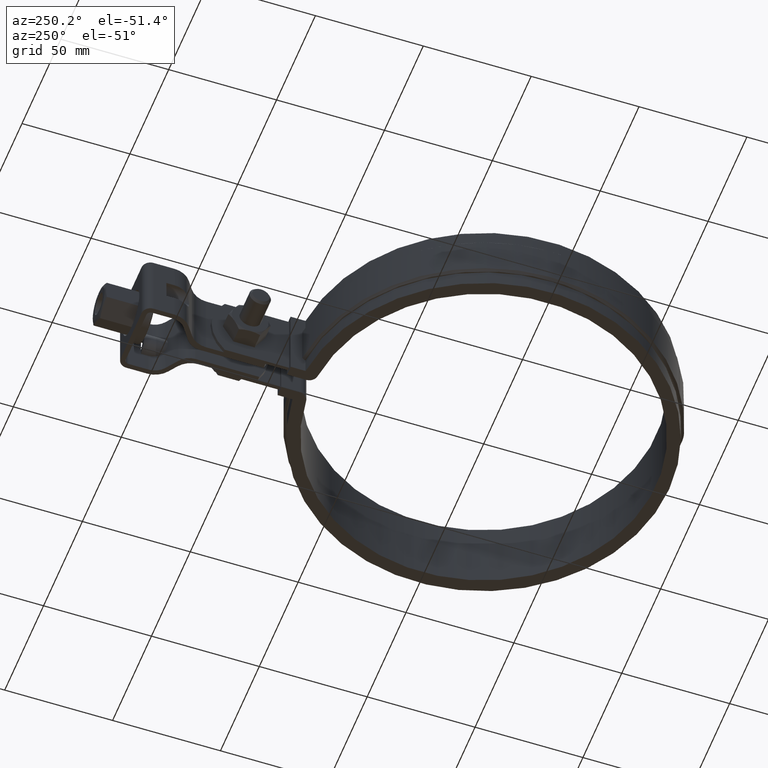
[diagram: clean part render]
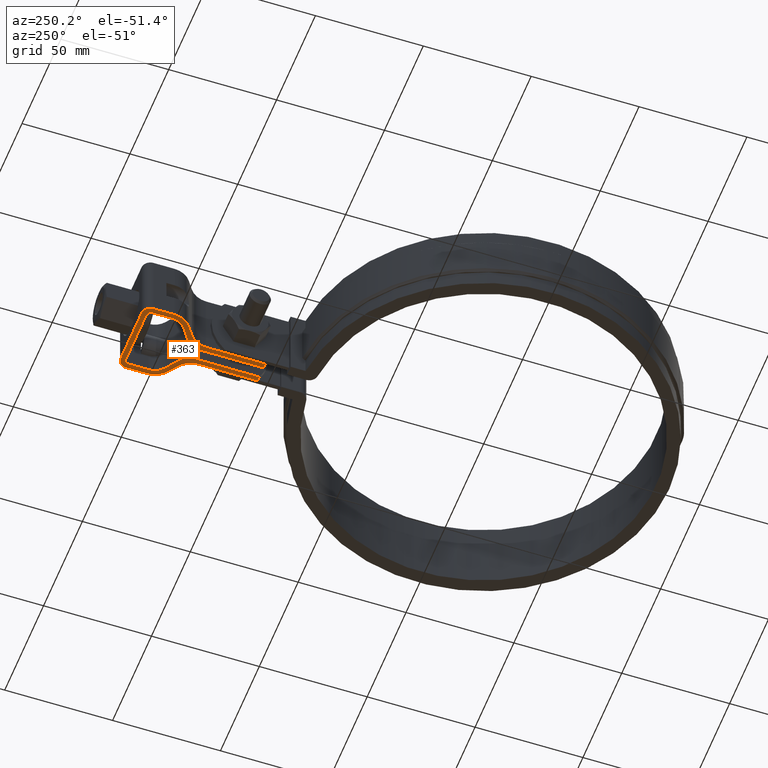
[diagram: same view with one face highlighted and labeled with its STEP entity id]
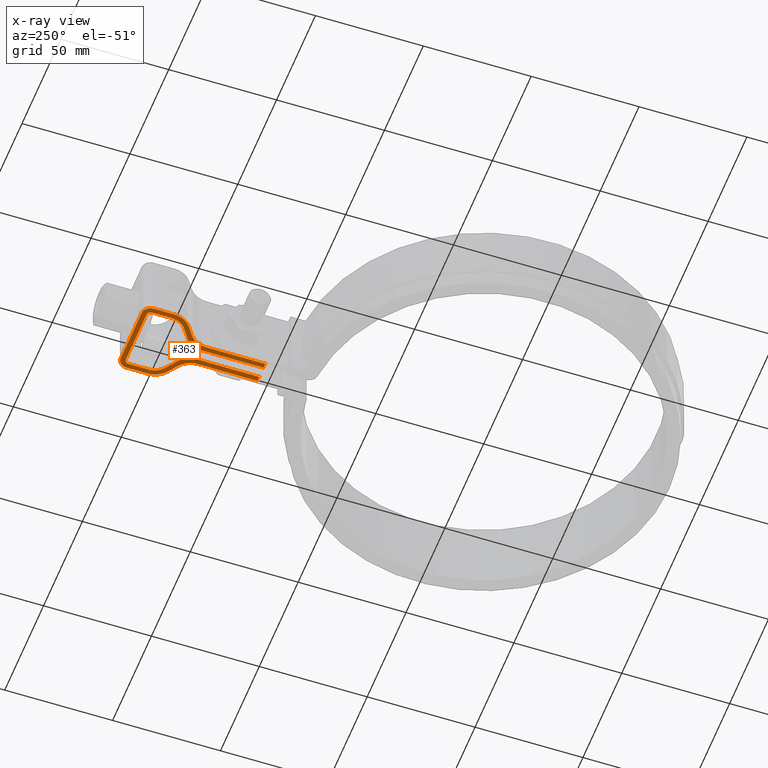
[diagram: x-ray of the same camera — body ghosted, the highlighted face saturated]
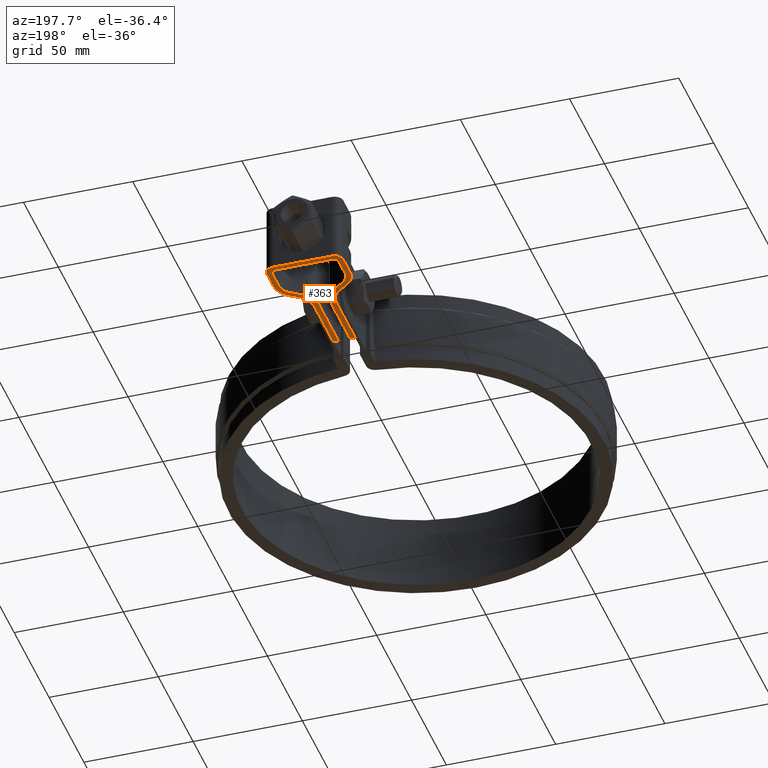
[diagram: same view with one face highlighted and labeled with its STEP entity id]
A machine part, auxiliary view. The second image highlights one B-rep face of the part: STEP entity #363.
The next image is the same camera in x-ray: the body ghosted, the highlighted face saturated — about 0% of this face is hidden behind the body in this view.
A second angle (auxiliary view) of the same face is appended — the face is thin or edge-on in the first view.
In plain terms, the highlighted planar face has unit normal (-0, 0, 1).
Its self-contained STEP definition (entity closure, byte-faithful):
#363 = ADVANCED_FACE( '', ( #596 ), #597, .F. );
#596 = FACE_OUTER_BOUND( '', #1358, .T. );
#597 = PLANE( '', #1359 );
#1358 = EDGE_LOOP( '', ( #3190, #3191, #3192, #3193, #3194, #3195, #3196, #3197, #3198, #3199, #3200, #3201, #3202, #3203, #3204, #3205, #3206, #3207, #3208, #3209, #3210, #3211, #3212, #3213, #3214, #3215, #3216, #3217 ) );
#1359 = AXIS2_PLACEMENT_3D( '', #3218, #3219, #3220 );
#3190 = ORIENTED_EDGE( '', *, *, #5131, .F. );
#3191 = ORIENTED_EDGE( '', *, *, #5132, .F. );
#3192 = ORIENTED_EDGE( '', *, *, #5133, .F. );
#3193 = ORIENTED_EDGE( '', *, *, #5134, .F. );
#3194 = ORIENTED_EDGE( '', *, *, #5135, .F. );
#3195 = ORIENTED_EDGE( '', *, *, #5136, .F. );
#3196 = ORIENTED_EDGE( '', *, *, #5137, .F. );
#3197 = ORIENTED_EDGE( '', *, *, #5138, .F. );
#3198 = ORIENTED_EDGE( '', *, *, #5044, .F. );
#3199 = ORIENTED_EDGE( '', *, *, #5051, .F. );
#3200 = ORIENTED_EDGE( '', *, *, #5091, .F. );
#3201 = ORIENTED_EDGE( '', *, *, #5139, .F. );
#3202 = ORIENTED_EDGE( '', *, *, #5140, .F. );
#3203 = ORIENTED_EDGE( '', *, *, #5141, .F. );
#3204 = ORIENTED_EDGE( '', *, *, #5142, .F. );
#3205 = ORIENTED_EDGE( '', *, *, #5143, .F. );
#3206 = ORIENTED_EDGE( '', *, *, #5100, .F. );
#3207 = ORIENTED_EDGE( '', *, *, #5092, .F. );
#3208 = ORIENTED_EDGE( '', *, *, #5040, .F. );
#3209 = ORIENTED_EDGE( '', *, *, #5097, .F. );
#3210 = ORIENTED_EDGE( '', *, *, #5104, .F. );
#3211 = ORIENTED_EDGE( '', *, *, #5144, .F. );
#3212 = ORIENTED_EDGE( '', *, *, #5145, .F. );
#3213 = ORIENTED_EDGE( '', *, *, #5106, .F. );
#3214 = ORIENTED_EDGE( '', *, *, #5146, .F. );
#3215 = ORIENTED_EDGE( '', *, *, #5147, .F. );
#3216 = ORIENTED_EDGE( '', *, *, #5148, .F. );
#3217 = ORIENTED_EDGE( '', *, *, #5149, .F. );
#3218 = CARTESIAN_POINT( '', ( 13.4999999999997, 159.398345459992, -31.9999999999873 ) );
#3219 = DIRECTION( '', ( -9.11521279052786E-016, 1.75137682134619E-013, 1.00000000000000 ) );
#3220 = DIRECTION( '', ( -3.03451482752472E-016, 1.00000000000000, -1.75137682134619E-013 ) );
#5040 = EDGE_CURVE( '', #5561, #5563, #5564, .T. );
#5044 = EDGE_CURVE( '', #5569, #5571, #5572, .T. );
#5051 = EDGE_CURVE( '', #5583, #5569, #5585, .T. );
#5091 = EDGE_CURVE( '', #5651, #5583, #5653, .T. );
#5092 = EDGE_CURVE( '', #5563, #5654, #5655, .T. );
#5097 = EDGE_CURVE( '', #5661, #5561, #5663, .T. );
#5100 = EDGE_CURVE( '', #5654, #5667, #5668, .T. );
#5104 = EDGE_CURVE( '', #5672, #5661, #5674, .T. );
#5106 = EDGE_CURVE( '', #5675, #5677, #5678, .T. );
#5131 = EDGE_CURVE( '', #5719, #5720, #5721, .F. );
#5132 = EDGE_CURVE( '', #5722, #5719, #5723, .T. );
#5133 = EDGE_CURVE( '', #5724, #5722, #5725, .T. );
#5134 = EDGE_CURVE( '', #5726, #5724, #5727, .T. );
#5135 = EDGE_CURVE( '', #5728, #5726, #5729, .T. );
#5136 = EDGE_CURVE( '', #5730, #5728, #5731, .T. );
#5137 = EDGE_CURVE( '', #5732, #5730, #5733, .T. );
#5138 = EDGE_CURVE( '', #5571, #5732, #5734, .T. );
#5139 = EDGE_CURVE( '', #5735, #5651, #5736, .T. );
#5140 = EDGE_CURVE( '', #5737, #5735, #5738, .T. );
#5141 = EDGE_CURVE( '', #5739, #5737, #5740, .T. );
#5142 = EDGE_CURVE( '', #5741, #5739, #5742, .F. );
#5143 = EDGE_CURVE( '', #5667, #5741, #5743, .T. );
#5144 = EDGE_CURVE( '', #5744, #5672, #5745, .T. );
#5145 = EDGE_CURVE( '', #5677, #5744, #5746, .T. );
#5146 = EDGE_CURVE( '', #5747, #5675, #5748, .T. );
#5147 = EDGE_CURVE( '', #5749, #5747, #5750, .T. );
#5148 = EDGE_CURVE( '', #5751, #5749, #5752, .T. );
#5149 = EDGE_CURVE( '', #5720, #5751, #5753, .T. );
#5561 = VERTEX_POINT( '', #7379 );
#5563 = VERTEX_POINT( '', #7382 );
#5564 = CIRCLE( '', #7383, 7.99999999999985 );
#5569 = VERTEX_POINT( '', #7389 );
#5571 = VERTEX_POINT( '', #7392 );
#5572 = CIRCLE( '', #7393, 3.99999999999992 );
#5583 = VERTEX_POINT( '', #7409 );
#5585 = LINE( '', #7412, #7413 );
#5651 = VERTEX_POINT( '', #7618 );
#5653 = CIRCLE( '', #7621, 9.99999999999688 );
#5654 = VERTEX_POINT( '', #7622 );
#5655 = LINE( '', #7623, #7624 );
#5661 = VERTEX_POINT( '', #7633 );
#5663 = LINE( '', #7636, #7637 );
#5667 = VERTEX_POINT( '', #7642 );
#5668 = CIRCLE( '', #7643, 7.99999999999750 );
#5672 = VERTEX_POINT( '', #7648 );
#5674 = CIRCLE( '', #7651, 1.99999999999909 );
#5675 = VERTEX_POINT( '', #7652 );
#5677 = VERTEX_POINT( '', #7655 );
#5678 = LINE( '', #7656, #7657 );
#5719 = VERTEX_POINT( '', #7716 );
#5720 = VERTEX_POINT( '', #7717 );
#5721 = LINE( '', #7718, #7719 );
#5722 = VERTEX_POINT( '', #7720 );
#5723 = LINE( '', #7721, #7722 );
#5724 = VERTEX_POINT( '', #7723 );
#5725 = CIRCLE( '', #7724, 9.99999999999688 );
#5726 = VERTEX_POINT( '', #7725 );
#5727 = LINE( '', #7726, #7727 );
#5728 = VERTEX_POINT( '', #7728 );
#5729 = CIRCLE( '', #7729, 9.99999999999981 );
#5730 = VERTEX_POINT( '', #7730 );
#5731 = LINE( '', #7731, #7732 );
#5732 = VERTEX_POINT( '', #7733 );
#5733 = CIRCLE( '', #7734, 3.99999999999818 );
#5734 = LINE( '', #7735, #7736 );
#5735 = VERTEX_POINT( '', #7737 );
#5736 = LINE( '', #7738, #7739 );
#5737 = VERTEX_POINT( '', #7740 );
#5738 = CIRCLE( '', #7741, 9.99999999999981 );
#5739 = VERTEX_POINT( '', #7742 );
#5740 = LINE( '', #7743, #7744 );
#5741 = VERTEX_POINT( '', #7745 );
#5742 = LINE( '', #7746, #7747 );
#5743 = LINE( '', #7748, #7749 );
#5744 = VERTEX_POINT( '', #7750 );
#5745 = LINE( '', #7751, #7752 );
#5746 = CIRCLE( '', #7753, 1.99999999999996 );
#5747 = VERTEX_POINT( '', #7754 );
#5748 = CIRCLE( '', #7755, 7.99999999999750 );
#5749 = VERTEX_POINT( '', #7756 );
#5750 = LINE( '', #7757, #7758 );
#5751 = VERTEX_POINT( '', #7759 );
#5752 = CIRCLE( '', #7760, 7.99999999999985 );
#5753 = LINE( '', #7761, #7762 );
#7379 = CARTESIAN_POINT( '', ( 15.1999999999997, 149.760186080679, -31.9999999999856 ) );
#7382 = CARTESIAN_POINT( '', ( 11.7886114908081, 143.206969726370, -31.9999999999845 ) );
#7383 = AXIS2_PLACEMENT_3D( '', #9563, #9564, #9565 );
#7389 = CARTESIAN_POINT( '', ( 17.4999999999997, 159.398345459992, -31.9999999999873 ) );
#7392 = CARTESIAN_POINT( '', ( 13.4999999999998, 163.398345459990, -31.9999999999880 ) );
#7393 = AXIS2_PLACEMENT_3D( '', #9571, #9572, #9573 );
#7409 = CARTESIAN_POINT( '', ( 17.4999999999997, 149.604015965514, -31.9999999999856 ) );
#7412 = CARTESIAN_POINT( '', ( 17.4999999999997, 149.604015965514, -31.9999999999856 ) );
#7413 = VECTOR( '', #9580, 999.999999999848 );
#7618 = CARTESIAN_POINT( '', ( 13.2357643635102, 141.412495522628, -31.9999999999842 ) );
#7621 = AXIS2_PLACEMENT_3D( '', #9643, #9644, #9645 );
#7622 = CARTESIAN_POINT( '', ( 6.11138850919153, 139.231735398547, -31.9999999999838 ) );
#7623 = CARTESIAN_POINT( '', ( 11.7886114908081, 143.206969726370, -31.9999999999845 ) );
#7624 = VECTOR( '', #9646, 1000.00000000014 );
#7633 = CARTESIAN_POINT( '', ( 15.1999999999997, 159.098345459992, -31.9999999999873 ) );
#7636 = CARTESIAN_POINT( '', ( 15.1999999999997, 159.098345459992, -31.9999999999873 ) );
#7637 = VECTOR( '', #9651, 999.999999999848 );
#7642 = CARTESIAN_POINT( '', ( 2.69999999999997, 132.678519044238, -31.9999999999827 ) );
#7643 = AXIS2_PLACEMENT_3D( '', #9656, #9657, #9658 );
#7648 = CARTESIAN_POINT( '', ( 13.1999999999997, 161.098345459991, -31.9999999999876 ) );
#7651 = AXIS2_PLACEMENT_3D( '', #9664, #9665, #9666 );
#7652 = CARTESIAN_POINT( '', ( -15.1999999999997, 149.760186080679, -31.9999999999857 ) );
#7655 = CARTESIAN_POINT( '', ( -15.1999999999997, 159.098345459992, -31.9999999999873 ) );
#7656 = CARTESIAN_POINT( '', ( -15.1999999999997, 149.760186080679, -31.9999999999857 ) );
#7657 = VECTOR( '', #9668, 999.999999999848 );
#7716 = CARTESIAN_POINT( '', ( -4.99999999999989, 103.021190379119, -31.9999999999775 ) );
#7717 = CARTESIAN_POINT( '', ( -2.69999999999993, 103.021190379119, -31.9999999999775 ) );
#7718 = CARTESIAN_POINT( '', ( 81.1487655465062, 103.021190379119, -31.9999999999774 ) );
#7719 = VECTOR( '', #9705, 1000.00000000028 );
#7720 = CARTESIAN_POINT( '', ( -4.99999999999986, 130.440080726866, -31.9999999999823 ) );
#7721 = CARTESIAN_POINT( '', ( -4.99999999999989, 130.440080726866, -31.9999999999823 ) );
#7722 = VECTOR( '', #9706, 999.999999999848 );
#7723 = CARTESIAN_POINT( '', ( -9.26423563648934, 138.631601169752, -31.9999999999837 ) );
#7724 = AXIS2_PLACEMENT_3D( '', #9707, #9708, #9709 );
#7725 = CARTESIAN_POINT( '', ( -13.2357643635102, 141.412495522628, -31.9999999999842 ) );
#7726 = CARTESIAN_POINT( '', ( -13.2357643635102, 141.412495522628, -31.9999999999842 ) );
#7727 = VECTOR( '', #9710, 1000.00000000014 );
#7728 = CARTESIAN_POINT( '', ( -17.4999999999997, 149.604015965514, -31.9999999999856 ) );
#7729 = AXIS2_PLACEMENT_3D( '', #9711, #9712, #9713 );
#7730 = CARTESIAN_POINT( '', ( -17.4999999999997, 159.398345459992, -31.9999999999874 ) );
#7731 = CARTESIAN_POINT( '', ( -17.4999999999997, 159.398345459992, -31.9999999999874 ) );
#7732 = VECTOR( '', #9714, 999.999999999848 );
#7733 = CARTESIAN_POINT( '', ( -13.4999999999997, 163.398345459990, -31.9999999999881 ) );
#7734 = AXIS2_PLACEMENT_3D( '', #9715, #9716, #9717 );
#7735 = CARTESIAN_POINT( '', ( 13.4999999999998, 163.398345459990, -31.9999999999880 ) );
#7736 = VECTOR( '', #9718, 1000.00000000028 );
#7737 = CARTESIAN_POINT( '', ( 9.26423563648937, 138.631601169752, -31.9999999999837 ) );
#7738 = CARTESIAN_POINT( '', ( 9.26423563648935, 138.631601169752, -31.9999999999837 ) );
#7739 = VECTOR( '', #9719, 1000.00000000014 );
#7740 = CARTESIAN_POINT( '', ( 4.99999999999991, 130.440080726866, -31.9999999999823 ) );
#7741 = AXIS2_PLACEMENT_3D( '', #9720, #9721, #9722 );
#7742 = CARTESIAN_POINT( '', ( 4.99999999999993, 103.021190379119, -31.9999999999775 ) );
#7743 = CARTESIAN_POINT( '', ( 4.99999999999992, 98.3983454600197, -31.9999999999767 ) );
#7744 = VECTOR( '', #9723, 999.999999999848 );
#7745 = CARTESIAN_POINT( '', ( 2.69999999999996, 103.021190379119, -31.9999999999775 ) );
#7746 = CARTESIAN_POINT( '', ( 81.1487655465062, 103.021190379119, -31.9999999999774 ) );
#7747 = VECTOR( '', #9724, 1000.00000000028 );
#7748 = CARTESIAN_POINT( '', ( 2.69999999999996, 132.678519044238, -31.9999999999827 ) );
#7749 = VECTOR( '', #9725, 999.999999999848 );
#7750 = CARTESIAN_POINT( '', ( -13.1999999999997, 161.098345459991, -31.9999999999877 ) );
#7751 = CARTESIAN_POINT( '', ( -13.1999999999998, 161.098345459991, -31.9999999999877 ) );
#7752 = VECTOR( '', #9726, 1000.00000000028 );
#7753 = AXIS2_PLACEMENT_3D( '', #9727, #9728, #9729 );
#7754 = CARTESIAN_POINT( '', ( -11.7886114908081, 143.206969726370, -31.9999999999845 ) );
#7755 = AXIS2_PLACEMENT_3D( '', #9730, #9731, #9732 );
#7756 = CARTESIAN_POINT( '', ( -6.11138850919150, 139.231735398547, -31.9999999999838 ) );
#7757 = CARTESIAN_POINT( '', ( -6.11138850919153, 139.231735398547, -31.9999999999838 ) );
#7758 = VECTOR( '', #9733, 1000.00000000014 );
#7759 = CARTESIAN_POINT( '', ( -2.69999999999994, 132.678519044238, -31.9999999999827 ) );
#7760 = AXIS2_PLACEMENT_3D( '', #9734, #9735, #9736 );
#7761 = CARTESIAN_POINT( '', ( -2.69999999999993, 98.3983454600197, -31.9999999999767 ) );
#7762 = VECTOR( '', #9737, 999.999999999848 );
#9563 = CARTESIAN_POINT( '', ( 7.19999999999987, 149.760186080679, -31.9999999999857 ) );
#9564 = DIRECTION( '', ( 9.11521279052786E-016, -1.75137682134619E-013, -1.00000000000000 ) );
#9565 = DIRECTION( '', ( 1.00000000000000, 3.03451482752632E-016, 9.11521279052733E-016 ) );
#9571 = CARTESIAN_POINT( '', ( 13.4999999999997, 159.398345459992, -31.9999999999873 ) );
#9572 = DIRECTION( '', ( -9.11521279052786E-016, 1.75137682134619E-013, 1.00000000000000 ) );
#9573 = DIRECTION( '', ( 1.00000000000000, 8.66110482556257E-017, 9.11521279052771E-016 ) );
#9580 = DIRECTION( '', ( -2.34062543713370E-016, 1.00000000000000, -1.75137682134619E-013 ) );
#9643 = CARTESIAN_POINT( '', ( 7.49999999999986, 149.604015965514, -31.9999999999856 ) );
#9644 = DIRECTION( '', ( -9.11521279052792E-016, 1.75137682134619E-013, 1.00000000000000 ) );
#9645 = DIRECTION( '', ( 0.573576436351214, -0.819152044288874, 1.43987217479486E-013 ) );
#9646 = DIRECTION( '', ( -0.819152044289109, -0.573576436350878, 9.97081730703786E-014 ) );
#9651 = DIRECTION( '', ( 2.42736161093257E-016, -1.00000000000000, 1.75137682134619E-013 ) );
#9656 = CARTESIAN_POINT( '', ( 10.6999999999998, 132.678519044238, -31.9999999999827 ) );
#9657 = DIRECTION( '', ( -9.11521279052779E-016, 1.75137682134619E-013, 1.00000000000000 ) );
#9658 = DIRECTION( '', ( -0.573576436351214, 0.819152044288874, -1.43987217479486E-013 ) );
#9664 = CARTESIAN_POINT( '', ( 13.1999999999997, 159.098345459992, -31.9999999999873 ) );
#9665 = DIRECTION( '', ( 9.11521279052786E-016, -1.75137682134619E-013, -1.00000000000000 ) );
#9666 = DIRECTION( '', ( -3.03451482752472E-016, 1.00000000000000, -1.75137682134619E-013 ) );
#9668 = DIRECTION( '', ( -2.42736161093257E-016, 1.00000000000000, -1.75137682134619E-013 ) );
#9705 = DIRECTION( '', ( -1.00000000000000, -3.03451482752664E-016, -1.09521223212601E-015 ) );
#9706 = DIRECTION( '', ( 2.42736161093257E-016, -1.00000000000000, 1.75137682134619E-013 ) );
#9707 = CARTESIAN_POINT( '', ( -14.9999999999997, 130.440080726866, -31.9999999999823 ) );
#9708 = DIRECTION( '', ( 9.11521279052824E-016, -1.75137682134619E-013, -1.00000000000000 ) );
#9709 = DIRECTION( '', ( 0.573576436351214, 0.819152044288874, -1.42941563225691E-013 ) );
#9710 = DIRECTION( '', ( 0.819152044289110, -0.573576436350878, 1.01201522108677E-013 ) );
#9711 = CARTESIAN_POINT( '', ( -7.49999999999985, 149.604015965514, -31.9999999999856 ) );
#9712 = DIRECTION( '', ( -9.11521279052786E-016, 1.75137682134619E-013, 1.00000000000000 ) );
#9713 = DIRECTION( '', ( -1.00000000000000, -4.76923830350237E-016, -9.11521279052702E-016 ) );
#9714 = DIRECTION( '', ( 2.34062543713370E-016, -1.00000000000000, 1.75137682134619E-013 ) );
#9715 = CARTESIAN_POINT( '', ( -13.4999999999998, 159.398345459992, -31.9999999999874 ) );
#9716 = DIRECTION( '', ( -9.11521279052786E-016, 1.75137682134619E-013, 1.00000000000000 ) );
#9717 = DIRECTION( '', ( -3.03451482752472E-016, 1.00000000000000, -1.75137682134619E-013 ) );
#9718 = DIRECTION( '', ( -1.00000000000000, -3.03451482752632E-016, -9.11521279052733E-016 ) );
#9719 = DIRECTION( '', ( 0.819152044289109, 0.573576436350878, -9.97081730703786E-014 ) );
#9720 = CARTESIAN_POINT( '', ( 14.9999999999997, 130.440080726866, -31.9999999999823 ) );
#9721 = DIRECTION( '', ( 9.11521279052786E-016, -1.75137682134619E-013, -1.00000000000000 ) );
#9722 = DIRECTION( '', ( -1.00000000000000, -3.03451482752632E-016, -9.11521279052733E-016 ) );
#9723 = DIRECTION( '', ( -2.42736161093257E-016, 1.00000000000000, -1.75137682134619E-013 ) );
#9724 = DIRECTION( '', ( -1.00000000000000, -3.03451482752664E-016, -1.09521223212601E-015 ) );
#9725 = DIRECTION( '', ( 2.42736161093257E-016, -1.00000000000000, 1.75137682134619E-013 ) );
#9726 = DIRECTION( '', ( 1.00000000000000, 3.03451482752632E-016, 9.11521279052733E-016 ) );
#9727 = CARTESIAN_POINT( '', ( -13.1999999999997, 159.098345459992, -31.9999999999873 ) );
#9728 = DIRECTION( '', ( 9.11521279052786E-016, -1.75137682134619E-013, -1.00000000000000 ) );
#9729 = DIRECTION( '', ( -1.00000000000000, -3.03451482752632E-016, -9.11521279052733E-016 ) );
#9730 = CARTESIAN_POINT( '', ( -7.19999999999987, 149.760186080679, -31.9999999999857 ) );
#9731 = DIRECTION( '', ( 9.11521279052779E-016, -1.75137682134619E-013, -1.00000000000000 ) );
#9732 = DIRECTION( '', ( -0.573576436351214, -0.819152044288874, 1.42941563225691E-013 ) );
#9733 = DIRECTION( '', ( -0.819152044289110, 0.573576436350878, -1.01201522108677E-013 ) );
#9734 = CARTESIAN_POINT( '', ( -10.6999999999998, 132.678519044238, -31.9999999999827 ) );
#9735 = DIRECTION( '', ( -9.11521279052786E-016, 1.75137682134619E-013, 1.00000000000000 ) );
#9736 = DIRECTION( '', ( 1.00000000000000, 3.03451482752632E-016, 9.11521279052733E-016 ) );
#9737 = DIRECTION( '', ( -2.42736161093257E-016, 1.00000000000000, -1.75137682134619E-013 ) );